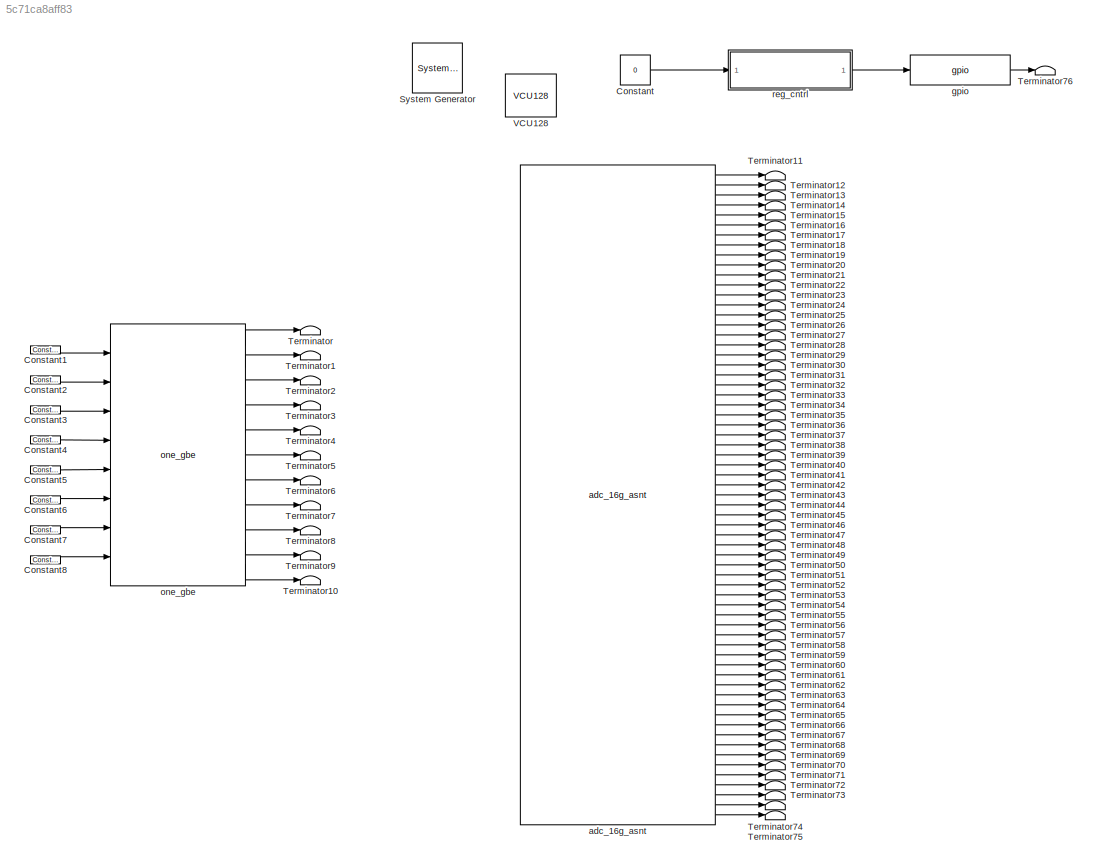
MODEL slx_5c71ca8aff83
KIND model
CONFIG AbsTol = auto
CONFIG EnableMultiTasking = off
CONFIG FixedStep = auto
CONFIG MaxStep = auto
CONFIG MinStep = auto
CONFIG RelTol = 1e-3
CONFIG SampleTimeConstraint = Unconstrained
CONFIG Solver = VariableStepAuto
CONFIG SolverName = VariableStepAuto
CONFIG StartTime = 0.0
CONFIG StopTime = 10.0
BLOCK [Reference]  System Generator  REF=xbsIndex_r4/ System Generator
  AttributesFormatString = System\nGenerator
  Ports = []
  SourceBlock = xbsIndex_r4/ System Generator
  SourceType = Xilinx System Generator Block
  Tag = genX
  UserDataPersistent = on
BLOCK [Constant] Constant
  Value = 0
BLOCK [Reference] Constant1  REF=xbsIndex_r4/Constant
  Ports = [0, 1]
  SourceBlock = xbsIndex_r4/Constant
  SourceType = Xilinx Constant Block Block
BLOCK [Reference] Constant2  REF=xbsIndex_r4/Constant
  Ports = [0, 1]
  SourceBlock = xbsIndex_r4/Constant
  SourceType = Xilinx Constant Block Block
BLOCK [Reference] Constant3  REF=xbsIndex_r4/Constant
  Ports = [0, 1]
  SourceBlock = xbsIndex_r4/Constant
  SourceType = Xilinx Constant Block Block
BLOCK [Reference] Constant4  REF=xbsIndex_r4/Constant
  Ports = [0, 1]
  SourceBlock = xbsIndex_r4/Constant
  SourceType = Xilinx Constant Block Block
BLOCK [Reference] Constant5  REF=xbsIndex_r4/Constant
  Ports = [0, 1]
  SourceBlock = xbsIndex_r4/Constant
  SourceType = Xilinx Constant Block Block
BLOCK [Reference] Constant6  REF=xbsIndex_r4/Constant
  Ports = [0, 1]
  SourceBlock = xbsIndex_r4/Constant
  SourceType = Xilinx Constant Block Block
BLOCK [Reference] Constant7  REF=xbsIndex_r4/Constant
  Ports = [0, 1]
  SourceBlock = xbsIndex_r4/Constant
  SourceType = Xilinx Constant Block Block
BLOCK [Reference] Constant8  REF=xbsIndex_r4/Constant
  Ports = [0, 1]
  SourceBlock = xbsIndex_r4/Constant
  SourceType = Xilinx Constant Block Block
BLOCK [Terminator] Terminator
BLOCK [Terminator] Terminator1
BLOCK [Terminator] Terminator10
BLOCK [Terminator] Terminator11
BLOCK [Terminator] Terminator12
BLOCK [Terminator] Terminator13
BLOCK [Terminator] Terminator14
BLOCK [Terminator] Terminator15
BLOCK [Terminator] Terminator16
BLOCK [Terminator] Terminator17
BLOCK [Terminator] Terminator18
BLOCK [Terminator] Terminator19
BLOCK [Terminator] Terminator2
BLOCK [Terminator] Terminator20
BLOCK [Terminator] Terminator21
BLOCK [Terminator] Terminator22
BLOCK [Terminator] Terminator23
BLOCK [Terminator] Terminator24
BLOCK [Terminator] Terminator25
BLOCK [Terminator] Terminator26
BLOCK [Terminator] Terminator27
BLOCK [Terminator] Terminator28
BLOCK [Terminator] Terminator29
BLOCK [Terminator] Terminator3
BLOCK [Terminator] Terminator30
BLOCK [Terminator] Terminator31
BLOCK [Terminator] Terminator32
BLOCK [Terminator] Terminator33
BLOCK [Terminator] Terminator34
BLOCK [Terminator] Terminator35
BLOCK [Terminator] Terminator36
BLOCK [Terminator] Terminator37
BLOCK [Terminator] Terminator38
BLOCK [Terminator] Terminator39
BLOCK [Terminator] Terminator4
BLOCK [Terminator] Terminator40
BLOCK [Terminator] Terminator41
BLOCK [Terminator] Terminator42
BLOCK [Terminator] Terminator43
BLOCK [Terminator] Terminator44
BLOCK [Terminator] Terminator45
BLOCK [Terminator] Terminator46
BLOCK [Terminator] Terminator47
BLOCK [Terminator] Terminator48
BLOCK [Terminator] Terminator49
BLOCK [Terminator] Terminator5
BLOCK [Terminator] Terminator50
BLOCK [Terminator] Terminator51
BLOCK [Terminator] Terminator52
BLOCK [Terminator] Terminator53
BLOCK [Terminator] Terminator54
BLOCK [Terminator] Terminator55
BLOCK [Terminator] Terminator56
BLOCK [Terminator] Terminator57
BLOCK [Terminator] Terminator58
BLOCK [Terminator] Terminator59
BLOCK [Terminator] Terminator6
BLOCK [Terminator] Terminator60
BLOCK [Terminator] Terminator61
BLOCK [Terminator] Terminator62
BLOCK [Terminator] Terminator63
BLOCK [Terminator] Terminator64
BLOCK [Terminator] Terminator65
BLOCK [Terminator] Terminator66
BLOCK [Terminator] Terminator67
BLOCK [Terminator] Terminator68
BLOCK [Terminator] Terminator69
BLOCK [Terminator] Terminator7
BLOCK [Terminator] Terminator70
BLOCK [Terminator] Terminator71
BLOCK [Terminator] Terminator72
BLOCK [Terminator] Terminator73
BLOCK [Terminator] Terminator74
BLOCK [Terminator] Terminator75
BLOCK [Terminator] Terminator76
BLOCK [Terminator] Terminator8
BLOCK [Terminator] Terminator9
BLOCK [Reference] VCU128  REF=xps_library/Platforms/VCU128  (lib defined in mdl_00b5cec29cd0, mdl_02ab6ecaa3d1, +5 more)
  Ports = []
  SourceBlock = xps_library/Platforms/VCU128
  SourceProductName = CASPER XPS Blockset
  SourceType = xsg core config
  Tag = xps:xsg
BLOCK [Reference] adc_16g_asnt  REF=xps_library/ADCs/adc_16g_asnt  (lib defined in mdl_00b5cec29cd0, mdl_02ab6ecaa3d1, +5 more)
  Ports = [2, 65]
  SourceBlock = xps_library/ADCs/adc_16g_asnt
  SourceProductName = CASPER XPS Blockset
  SourceType = asnt_16g_adc
  Tag = xps:adc_4x16g_asnt
  UserDataPersistent = on
BLOCK [Reference] gpio  REF=xps_library/IO/gpio  (lib defined in mdl_00b5cec29cd0, mdl_02ab6ecaa3d1, +5 more)
  Ports = [1, 1]
  SourceBlock = xps_library/IO/gpio
  SourceProductName = CASPER XPS Blockset
  SourceType = gpio
  Tag = xps:gpio
BLOCK [Reference] one_gbe  REF=xps_library/IO/one_gbe  (lib defined in mdl_00b5cec29cd0, mdl_02ab6ecaa3d1, +5 more)
  Ports = [8, 11]
  SourceBlock = xps_library/IO/one_gbe
  SourceProductName = CASPER XPS Blockset
  SourceType = one_GbE
  Tag = xps:onegbe
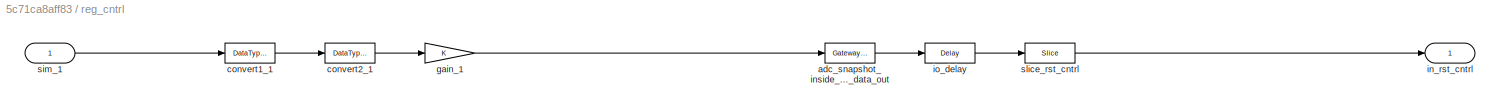
BLOCK [SubSystem] reg_cntrl
  AncestorBlock = xps_library/Memory/software_register
  AttributesFormatString = 1input:b = 1 bits
  Ports = [1, 1]
  RequestExecContextInheritance = off
  Tag = xps:sw_reg
BLOCK [Reference] reg_cntrl/adc_snapshot_inside_reg_cntrl_user_data_out  REF=xbsIndex_r4/Gateway In
  Ports = [1, 1]
  SourceBlock = xbsIndex_r4/Gateway In
  SourceType = Xilinx Gateway In Block
BLOCK [DataTypeConversion] reg_cntrl/convert1_1
  LockScale = on
  OutDataTypeStr = fixdt('ufix1_En0')
  RndMeth = Floor
  SaturateOnIntegerOverflow = off
BLOCK [DataTypeConversion] reg_cntrl/convert2_1
  ConvertRealWorld = Stored Integer (SI)
  LockScale = on
  OutDataTypeStr = fixdt('ufix1_En0')
  RndMeth = Floor
  SaturateOnIntegerOverflow = off
BLOCK [Gain] reg_cntrl/gain_1
  OutDataTypeStr = Inherit: Inherit via internal rule
  ParamDataTypeStr = Inherit: Inherit via internal rule
  SaturateOnIntegerOverflow = off
BLOCK [Outport] reg_cntrl/in_rst_cntrl
  IconDisplay = Port number
BLOCK [Reference] reg_cntrl/io_delay  REF=xbsIndex_r4/Delay
  Ports = [1, 1]
  SourceBlock = xbsIndex_r4/Delay
  SourceType = Xilinx Delay Block
BLOCK [Inport] reg_cntrl/sim_1
  IconDisplay = Port number
BLOCK [Reference] reg_cntrl/slice_rst_cntrl  REF=xbsIndex_r4/Slice
  Ports = [1, 1]
  SourceBlock = xbsIndex_r4/Slice
  SourceType = Xilinx Bit Slice Extractor Block
LINE Constant1:1 -> one_gbe:1
LINE Constant2:1 -> one_gbe:2
LINE Constant3:1 -> one_gbe:3
LINE Constant4:1 -> one_gbe:4
LINE Constant5:1 -> one_gbe:5
LINE Constant6:1 -> one_gbe:6
LINE Constant7:1 -> one_gbe:7
LINE Constant8:1 -> one_gbe:8
LINE Constant:1 -> reg_cntrl:1
LINE adc_16g_asnt:1 -> Terminator11:1
LINE adc_16g_asnt:10 -> Terminator20:1
LINE adc_16g_asnt:11 -> Terminator21:1
LINE adc_16g_asnt:12 -> Terminator22:1
LINE adc_16g_asnt:13 -> Terminator23:1
LINE adc_16g_asnt:14 -> Terminator24:1
LINE adc_16g_asnt:15 -> Terminator25:1
LINE adc_16g_asnt:16 -> Terminator26:1
LINE adc_16g_asnt:17 -> Terminator27:1
LINE adc_16g_asnt:18 -> Terminator28:1
LINE adc_16g_asnt:19 -> Terminator29:1
LINE adc_16g_asnt:2 -> Terminator12:1
LINE adc_16g_asnt:20 -> Terminator30:1
LINE adc_16g_asnt:21 -> Terminator31:1
LINE adc_16g_asnt:22 -> Terminator32:1
LINE adc_16g_asnt:23 -> Terminator33:1
LINE adc_16g_asnt:24 -> Terminator34:1
LINE adc_16g_asnt:25 -> Terminator35:1
LINE adc_16g_asnt:26 -> Terminator36:1
LINE adc_16g_asnt:27 -> Terminator37:1
LINE adc_16g_asnt:28 -> Terminator38:1
LINE adc_16g_asnt:29 -> Terminator39:1
LINE adc_16g_asnt:3 -> Terminator13:1
LINE adc_16g_asnt:30 -> Terminator40:1
LINE adc_16g_asnt:31 -> Terminator41:1
LINE adc_16g_asnt:32 -> Terminator42:1
LINE adc_16g_asnt:33 -> Terminator43:1
LINE adc_16g_asnt:34 -> Terminator44:1
LINE adc_16g_asnt:35 -> Terminator45:1
LINE adc_16g_asnt:36 -> Terminator46:1
LINE adc_16g_asnt:37 -> Terminator47:1
LINE adc_16g_asnt:38 -> Terminator48:1
LINE adc_16g_asnt:39 -> Terminator49:1
LINE adc_16g_asnt:4 -> Terminator14:1
LINE adc_16g_asnt:40 -> Terminator50:1
LINE adc_16g_asnt:41 -> Terminator51:1
LINE adc_16g_asnt:42 -> Terminator52:1
LINE adc_16g_asnt:43 -> Terminator53:1
LINE adc_16g_asnt:44 -> Terminator54:1
LINE adc_16g_asnt:45 -> Terminator55:1
LINE adc_16g_asnt:46 -> Terminator56:1
LINE adc_16g_asnt:47 -> Terminator57:1
LINE adc_16g_asnt:48 -> Terminator58:1
LINE adc_16g_asnt:49 -> Terminator59:1
LINE adc_16g_asnt:5 -> Terminator15:1
LINE adc_16g_asnt:50 -> Terminator60:1
LINE adc_16g_asnt:51 -> Terminator61:1
LINE adc_16g_asnt:52 -> Terminator62:1
LINE adc_16g_asnt:53 -> Terminator63:1
LINE adc_16g_asnt:54 -> Terminator64:1
LINE adc_16g_asnt:55 -> Terminator65:1
LINE adc_16g_asnt:56 -> Terminator66:1
LINE adc_16g_asnt:57 -> Terminator67:1
LINE adc_16g_asnt:58 -> Terminator68:1
LINE adc_16g_asnt:59 -> Terminator69:1
LINE adc_16g_asnt:6 -> Terminator16:1
LINE adc_16g_asnt:60 -> Terminator70:1
LINE adc_16g_asnt:61 -> Terminator71:1
LINE adc_16g_asnt:62 -> Terminator72:1
LINE adc_16g_asnt:63 -> Terminator73:1
LINE adc_16g_asnt:64 -> Terminator74:1
LINE adc_16g_asnt:65 -> Terminator75:1
LINE adc_16g_asnt:7 -> Terminator17:1
LINE adc_16g_asnt:8 -> Terminator18:1
LINE adc_16g_asnt:9 -> Terminator19:1
LINE gpio:1 -> Terminator76:1
LINE one_gbe:1 -> Terminator:1
LINE one_gbe:10 -> Terminator9:1
LINE one_gbe:11 -> Terminator10:1
LINE one_gbe:2 -> Terminator1:1
LINE one_gbe:3 -> Terminator2:1
LINE one_gbe:4 -> Terminator3:1
LINE one_gbe:5 -> Terminator4:1
LINE one_gbe:6 -> Terminator5:1
LINE one_gbe:7 -> Terminator6:1
LINE one_gbe:8 -> Terminator7:1
LINE one_gbe:9 -> Terminator8:1
LINE reg_cntrl:1 -> gpio:1
